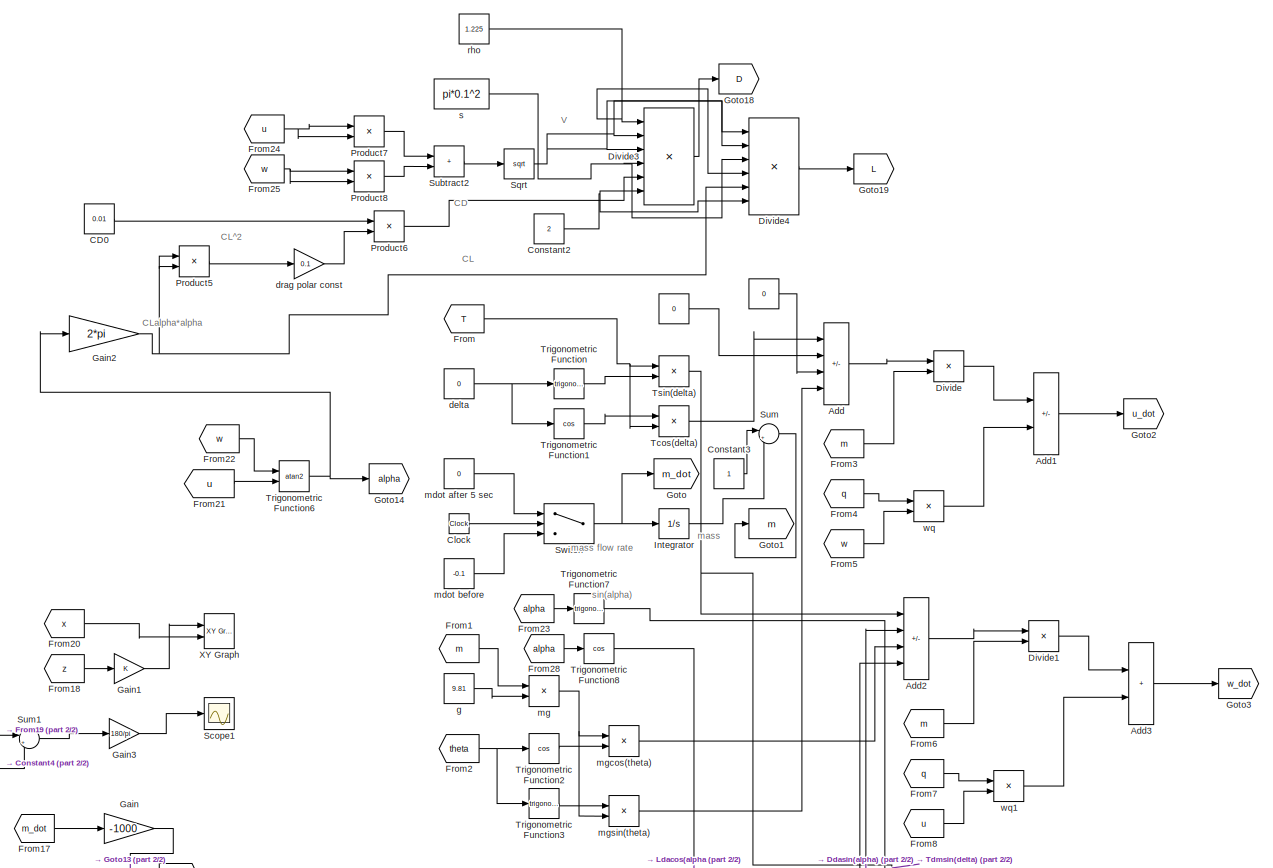
[diagram: root canvas - part 1/2, full width, top band]
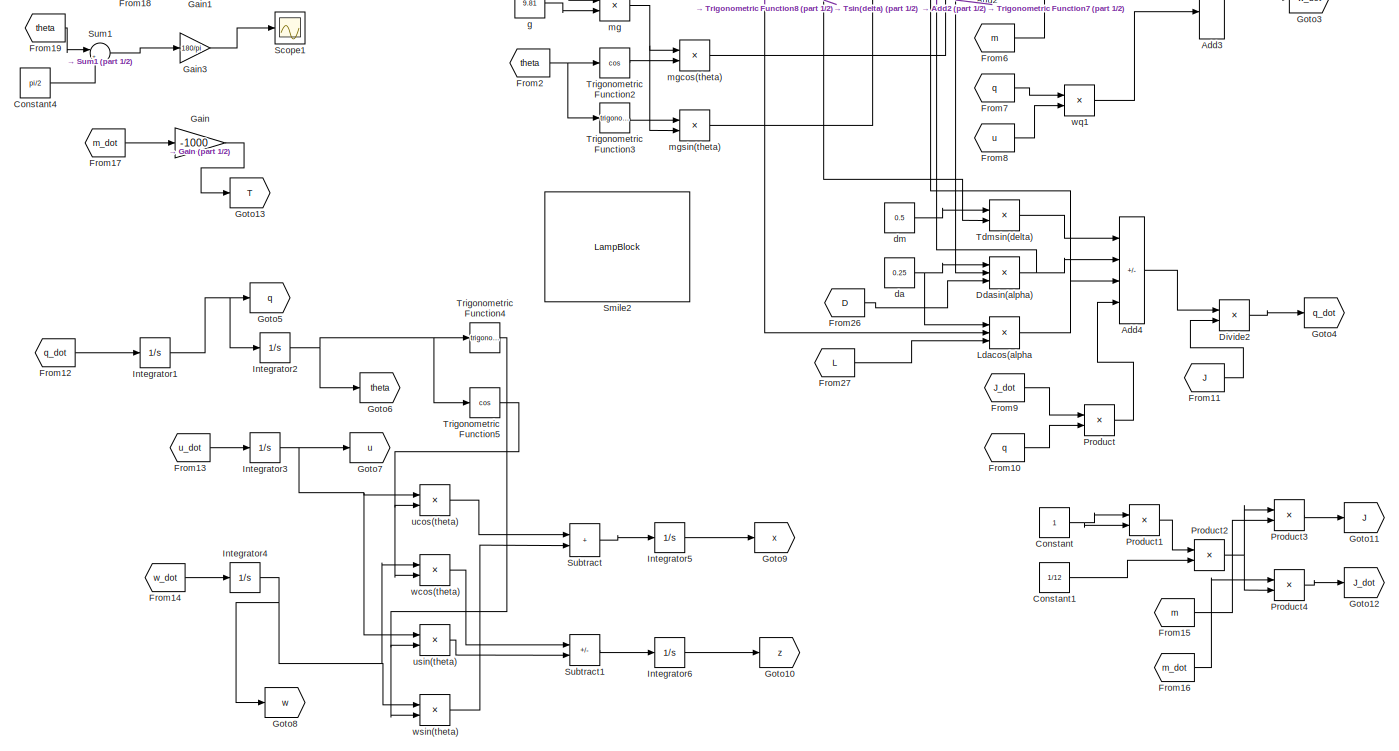
[diagram: root canvas - part 2/2, full width, bottom band]
MODEL slx_d563afc1fad7
KIND model
CONFIG AbsTol = auto
CONFIG EnableMultiTasking = off
CONFIG FixedStep = auto
CONFIG MaxStep = auto
CONFIG MinStep = auto
CONFIG RelTol = 1e-3
CONFIG SampleTimeConstraint = Unconstrained
CONFIG SolverName = VariableStepAuto
CONFIG StartTime = 0.0
CONFIG StopTime = 10.0
BLOCK [Constant]   
  Value = 0
BLOCK [Constant]     
  Value = 0
BLOCK [Sum] Add
  IconShape = rectangular
  Inputs = +-+-
  Ports = [4, 1]
BLOCK [Sum] Add1
  IconShape = rectangular
  Inputs = +-
  Ports = [2, 1]
BLOCK [Sum] Add2
  IconShape = rectangular
  Inputs = +-+-
  Ports = [4, 1]
BLOCK [Sum] Add3
  IconShape = rectangular
  Ports = [2, 1]
BLOCK [Sum] Add4
  IconShape = rectangular
  Inputs = +---
  Ports = [4, 1]
BLOCK [Constant] CD0
  Value = 0.01
BLOCK [Clock] Clock
BLOCK [Constant] Constant
BLOCK [Constant] Constant1
  Value = 1/12
BLOCK [Constant] Constant2
  Value = 2
BLOCK [Constant] Constant3
BLOCK [Constant] Constant4
  Value = pi/2
BLOCK [Product] Ddasin(alpha)
  Inputs = 3
  Ports = [3, 1]
BLOCK [Product] Divide
  Inputs = */
  Ports = [2, 1]
BLOCK [Product] Divide1
  Inputs = */
  Ports = [2, 1]
BLOCK [Product] Divide2
  Inputs = */
  Ports = [2, 1]
BLOCK [Product] Divide3
  Inputs = *****/
  Ports = [6, 1]
BLOCK [Product] Divide4
  Inputs = *****/
  Ports = [6, 1]
BLOCK [From] From
  GotoTag = T
BLOCK [From] From1
  GotoTag = m
BLOCK [From] From10
  GotoTag = q
BLOCK [From] From11
  GotoTag = J
BLOCK [From] From12
  GotoTag = q_dot
BLOCK [From] From13
  GotoTag = u_dot
BLOCK [From] From14
  GotoTag = w_dot
BLOCK [From] From15
  GotoTag = m
BLOCK [From] From16
  GotoTag = m_dot
BLOCK [From] From17
  GotoTag = m_dot
BLOCK [From] From18
  GotoTag = z
BLOCK [From] From19
  GotoTag = theta
BLOCK [From] From2
  GotoTag = theta
BLOCK [From] From20
  GotoTag = x
BLOCK [From] From21
  GotoTag = u
BLOCK [From] From22
  GotoTag = w
BLOCK [From] From23
  GotoTag = alpha
BLOCK [From] From24
  GotoTag = u
BLOCK [From] From25
  GotoTag = w
BLOCK [From] From26
  GotoTag = D
BLOCK [From] From27
  GotoTag = L
BLOCK [From] From28
  GotoTag = alpha
BLOCK [From] From3
  GotoTag = m
BLOCK [From] From4
  GotoTag = q
BLOCK [From] From5
  GotoTag = w
BLOCK [From] From6
  GotoTag = m
BLOCK [From] From7
  GotoTag = q
BLOCK [From] From8
  GotoTag = u
BLOCK [From] From9
  GotoTag = J_dot
BLOCK [Gain] Gain
  Gain = -1000
BLOCK [Gain] Gain1
BLOCK [Gain] Gain2
  Gain = 2*pi
BLOCK [Gain] Gain3
  Gain = 180/pi
BLOCK [Goto] Goto
  GotoTag = m_dot
BLOCK [Goto] Goto1
  GotoTag = m
BLOCK [Goto] Goto10
  GotoTag = z
BLOCK [Goto] Goto11
  GotoTag = J
BLOCK [Goto] Goto12
  GotoTag = J_dot
BLOCK [Goto] Goto13
  GotoTag = T
BLOCK [Goto] Goto14
  GotoTag = alpha
BLOCK [Goto] Goto18
  GotoTag = D
BLOCK [Goto] Goto19
  GotoTag = L
BLOCK [Goto] Goto2
  GotoTag = u_dot
BLOCK [Goto] Goto3
  GotoTag = w_dot
BLOCK [Goto] Goto4
  GotoTag = q_dot
BLOCK [Goto] Goto5
  GotoTag = q
BLOCK [Goto] Goto6
  GotoTag = theta
BLOCK [Goto] Goto7
  GotoTag = u
BLOCK [Goto] Goto8
  GotoTag = w
BLOCK [Goto] Goto9
  GotoTag = x
BLOCK [Integrator] Integrator
  Ports = [1, 1]
BLOCK [Integrator] Integrator1
  Ports = [1, 1]
BLOCK [Integrator] Integrator2
  Ports = [1, 1]
BLOCK [Integrator] Integrator3
  Ports = [1, 1]
BLOCK [Integrator] Integrator4
  Ports = [1, 1]
BLOCK [Integrator] Integrator5
  Ports = [1, 1]
BLOCK [Integrator] Integrator6
  Ports = [1, 1]
BLOCK [Product] Ldacos(alpha
  Inputs = 3
  Ports = [3, 1]
BLOCK [Product] Product
  Ports = [2, 1]
BLOCK [Product] Product1
  Ports = [2, 1]
BLOCK [Product] Product2
  Ports = [2, 1]
BLOCK [Product] Product3
  Ports = [2, 1]
BLOCK [Product] Product4
  Ports = [2, 1]
BLOCK [Product] Product5
  Ports = [2, 1]
BLOCK [Product] Product6
  Ports = [2, 1]
BLOCK [Product] Product7
  Ports = [2, 1]
BLOCK [Product] Product8
  Ports = [2, 1]
BLOCK [Scope] Scope1
  Floating = off
  NumInputPorts = 1
  Ports = [1]
  ScopeSpecificationString = Simulink.scopes.TimeScopeBlockCfg('CurrentConfiguration', extmgr.ConfigurationSet(extmgr.Configuration('Core','General UI',true),extmgr.Configuration('Core','Source UI',true),extmgr.Configuration('Sources','WiredSimulink',true,'DataLoggingVariableName','ScopeData1'),extmgr.Configuration('Visuals','Time Domain',true,'SerializedDisplays',{struct('MinYLimReal','61.41065','MaxYLimReal','93.17659','YLa...<+1370ch>
BLOCK [LampBlock] Smile2
  Icon = Smile2
  LabelPosition = Hide
BLOCK [Sqrt] Sqrt
BLOCK [Sum] Subtract
  IconShape = rectangular
  Ports = [2, 1]
BLOCK [Sum] Subtract1
  IconShape = rectangular
  Inputs = +-
  Ports = [2, 1]
BLOCK [Sum] Subtract2
  IconShape = rectangular
  Ports = [2, 1]
BLOCK [Sum] Sum
  Inputs = |++
  Ports = [2, 1]
BLOCK [Sum] Sum1
  Inputs = |++
  Ports = [2, 1]
BLOCK [Switch] Switch
  Criteria = u2 > Threshold
  InputSameDT = off
  SaturateOnIntegerOverflow = off
  Threshold = 5
BLOCK [Product] Tcos(delta)
  Ports = [2, 1]
BLOCK [Product] Tdmsin(delta)
  Ports = [2, 1]
BLOCK [Trigonometry] Trigonometric Function
  Ports = [1, 1]
BLOCK [Trigonometry] Trigonometric Function1
  Operator = cos
  Ports = [1, 1]
BLOCK [Trigonometry] Trigonometric Function2
  Operator = cos
  Ports = [1, 1]
BLOCK [Trigonometry] Trigonometric Function3
  Ports = [1, 1]
BLOCK [Trigonometry] Trigonometric Function4
  Ports = [1, 1]
BLOCK [Trigonometry] Trigonometric Function5
  Operator = cos
  Ports = [1, 1]
BLOCK [Trigonometry] Trigonometric Function6
  Operator = atan2
  Ports = [2, 1]
BLOCK [Trigonometry] Trigonometric Function7
  Ports = [1, 1]
BLOCK [Trigonometry] Trigonometric Function8
  Operator = cos
  Ports = [1, 1]
BLOCK [Product] Tsin(delta)
  Ports = [2, 1]
BLOCK [Reference] XY Graph  REF=simulink/Sinks/XY Graph
  Ports = [2]
  SourceBlock = simulink/Sinks/XY Graph
  SourceProductBaseCode = SL
  SourceType = XY scope.
BLOCK [Constant] da
  Value = 0.25
BLOCK [Constant] delta
  Value = 0
BLOCK [Constant] dm
  Value = 0.5
BLOCK [Gain] drag polar const
  Gain = 0.1
BLOCK [Constant] g
  Value = 9.81
BLOCK [Constant] mdot after 5 sec 
  Value = 0
BLOCK [Constant] mdot before
  Value = -0.1
BLOCK [Product] mg
  Ports = [2, 1]
BLOCK [Product] mgcos(theta)
  Ports = [2, 1]
BLOCK [Product] mgsin(theta)
  Ports = [2, 1]
BLOCK [Constant] rho
  Value = 1.225
BLOCK [Constant] s
  Value = pi*0.1^2
BLOCK [Product] ucos(theta)
  Ports = [2, 1]
BLOCK [Product] usin(theta)
  Ports = [2, 1]
BLOCK [Product] wcos(theta)
  Ports = [2, 1]
BLOCK [Product] wq
  Ports = [2, 1]
BLOCK [Product] wq1
  Ports = [2, 1]
BLOCK [Product] wsin(theta)
  Ports = [2, 1]
ANNOTATION (root): CD
ANNOTATION (root): CL
ANNOTATION (root): CL^2
ANNOTATION (root): CLalpha*alpha
ANNOTATION (root): V
ANNOTATION (root): mass
ANNOTATION (root): mass flow rate
ANNOTATION (root): sin(alpha)
LINE     :1 -> Add:3
LINE   :1 -> Add:2
LINE Add1:1 -> Goto2:1
LINE Add2:1 -> Divide1:1
LINE Add3:1 -> Goto3:1
LINE Add4:1 -> Divide2:1
LINE Add:1 -> Divide:1
LINE CD0:1 -> Product6:1
LINE Clock:1 -> Switch:2
LINE Constant1:1 -> Product2:2
NET Constant2:1 -> Divide3:6, Divide4:6
LINE Constant3:1 -> Sum:1
LINE Constant4:1 -> Sum1:2
NET Constant:1 -> Product1:1, Product1:2
NET Ddasin(alpha):1 -> Add2:2, Add4:2
LINE Divide1:1 -> Add3:1
LINE Divide2:1 -> Goto4:1
LINE Divide3:1 -> Goto18:1
LINE Divide4:1 -> Goto19:1
LINE Divide:1 -> Add1:1
LINE From10:1 -> Product:2
LINE From11:1 -> Divide2:2
LINE From12:1 -> Integrator1:1
LINE From13:1 -> Integrator3:1
LINE From14:1 -> Integrator4:1
LINE From15:1 -> Product3:2
LINE From16:1 -> Product4:1
LINE From17:1 -> Gain:1
LINE From18:1 -> Gain1:1
LINE From19:1 -> Sum1:1
LINE From1:1 -> mg:1
LINE From20:1 -> XY Graph:2
LINE From21:1 -> Trigonometric Function6:2
LINE From22:1 -> Trigonometric Function6:1
LINE From23:1 -> Trigonometric Function7:1
NET From24:1 -> Product7:1, Product7:2
NET From25:1 -> Product8:1, Product8:2
LINE From26:1 -> Ddasin(alpha):3
LINE From27:1 -> Ldacos(alpha:3
LINE From28:1 -> Trigonometric Function8:1
NET From2:1 -> Trigonometric Function2:1, Trigonometric Function3:1
LINE From3:1 -> Divide:2
LINE From4:1 -> wq:1
LINE From5:1 -> wq:2
LINE From6:1 -> Divide1:2
LINE From7:1 -> wq1:1
LINE From8:1 -> wq1:2
LINE From9:1 -> Product:1
NET From:1 -> Tcos(delta):2, Tsin(delta):1
LINE Gain1:1 -> XY Graph:1
NET Gain2:1 -> Divide4:5, Product5:1, Product5:2
LINE Gain3:1 -> Scope1:1
LINE Gain:1 -> Goto13:1
NET Integrator1:1 -> Goto5:1, Integrator2:1
NET Integrator2:1 -> Goto6:1, Trigonometric Function4:1, Trigonometric Function5:1
NET Integrator3:1 -> Goto7:1, ucos(theta):1, usin(theta):1
NET Integrator4:1 -> Goto8:1, wcos(theta):1, wsin(theta):1
LINE Integrator5:1 -> Goto9:1
LINE Integrator6:1 -> Goto10:1
LINE Integrator:1 -> Sum:2
NET Ldacos(alpha:1 -> Add2:4, Add4:3
LINE Product1:1 -> Product2:1
NET Product2:1 -> Product3:1, Product4:2
LINE Product3:1 -> Goto11:1
LINE Product4:1 -> Goto12:1
LINE Product5:1 -> drag polar const:1
LINE Product6:1 -> Divide3:5
LINE Product7:1 -> Subtract2:1
LINE Product8:1 -> Subtract2:2
LINE Product:1 -> Add4:4
NET Sqrt:1 -> Divide3:2, Divide3:3, Divide4:1, Divide4:2
LINE Subtract1:1 -> Integrator6:1
LINE Subtract2:1 -> Sqrt:1
LINE Subtract:1 -> Integrator5:1
LINE Sum1:1 -> Gain3:1
LINE Sum:1 -> Goto1:1
NET Switch:1 -> Goto:1, Integrator:1
LINE Tcos(delta):1 -> Add:1
LINE Tdmsin(delta):1 -> Add4:1
LINE Trigonometric Function1:1 -> Tcos(delta):1
LINE Trigonometric Function2:1 -> mgcos(theta):2
LINE Trigonometric Function3:1 -> mgsin(theta):1
NET Trigonometric Function4:1 -> usin(theta):2, wsin(theta):2
NET Trigonometric Function5:1 -> ucos(theta):2, wcos(theta):2
NET Trigonometric Function6:1 -> Gain2:1, Goto14:1
LINE Trigonometric Function7:1 -> Ddasin(alpha):2
LINE Trigonometric Function8:1 -> Ldacos(alpha:2
LINE Trigonometric Function:1 -> Tsin(delta):2
NET Tsin(delta):1 -> Add2:1, Tdmsin(delta):2
NET da:1 -> Ddasin(alpha):1, Ldacos(alpha:1
NET delta:1 -> Trigonometric Function1:1, Trigonometric Function:1
LINE dm:1 -> Tdmsin(delta):1
LINE drag polar const:1 -> Product6:2
LINE g:1 -> mg:2
LINE mdot after 5 sec :1 -> Switch:1
LINE mdot before:1 -> Switch:3
NET mg:1 -> mgcos(theta):1, mgsin(theta):2
LINE mgcos(theta):1 -> Add2:3
LINE mgsin(theta):1 -> Add:4
NET rho:1 -> Divide3:1, Divide4:4
NET s:1 -> Divide3:4, Divide4:3
LINE ucos(theta):1 -> Subtract:1
LINE usin(theta):1 -> Subtract1:2
LINE wcos(theta):1 -> Subtract1:1
LINE wq1:1 -> Add3:2
LINE wq:1 -> Add1:2
LINE wsin(theta):1 -> Subtract:2
note: NET lines group one-source signal fan-out (src -> all destinations, sorted); 1:1 wires keep LINE
